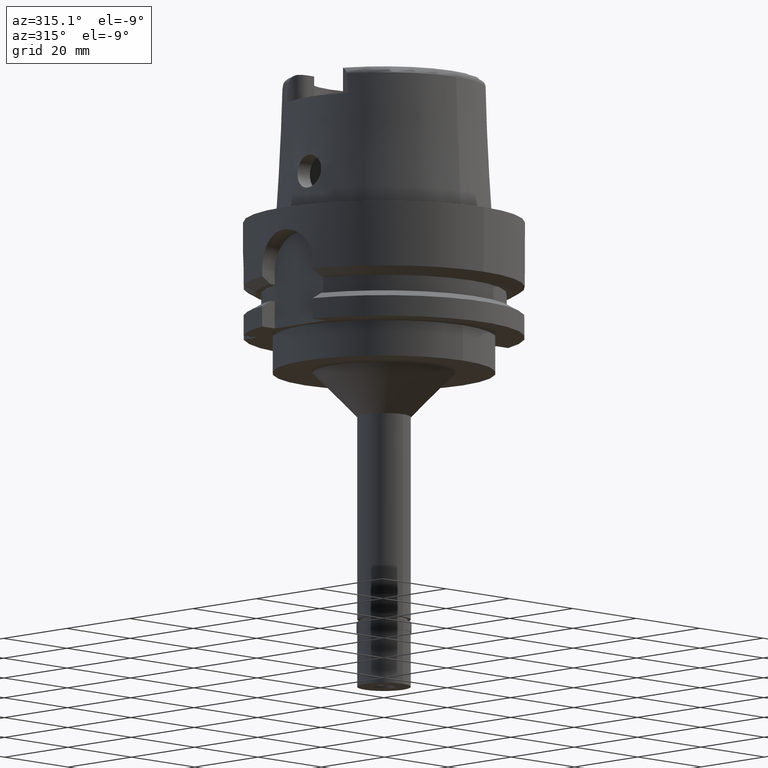
[diagram: clean part render]
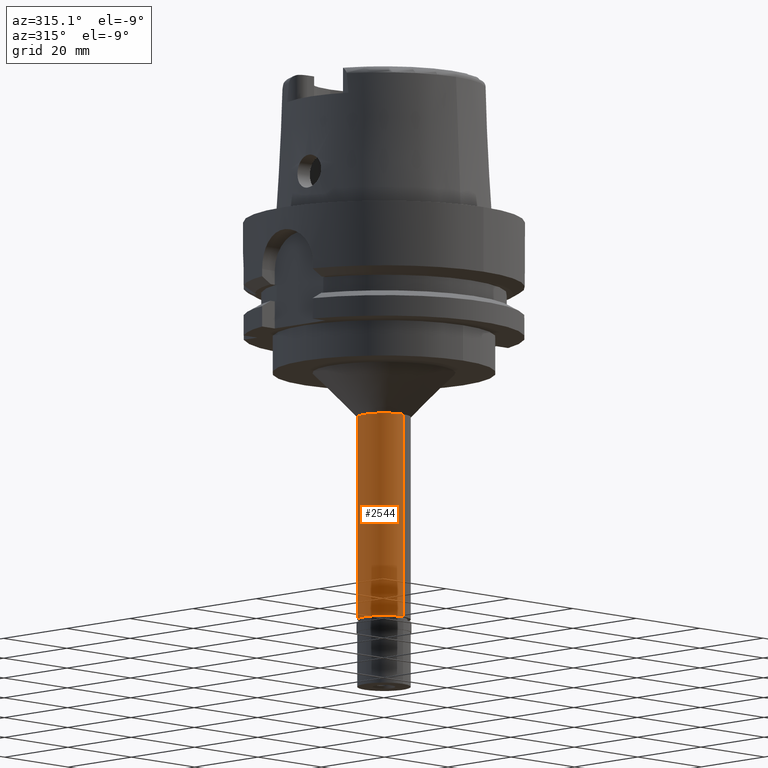
[diagram: same view with one face highlighted and labeled with its STEP entity id]
A machine part, auxiliary view. The second image highlights one B-rep face of the part: STEP entity #2544.
In plain terms, the highlighted cylindrical surface (edge-blend (fillet) strip) has radius 6 mm, axis along (0, 0, 1).
Its self-contained STEP definition (entity closure, byte-faithful):
#124 = CARTESIAN_POINT ( 'NONE',  ( 0.0000000000000000000, -6.000000000000000000, -44.00000000000000000 ) ) ;
#178 = EDGE_CURVE ( 'NONE', #2783, #1268, #1965, .T. ) ;
#194 = VERTEX_POINT ( 'NONE', #4036 ) ;
#621 = DIRECTION ( 'NONE',  ( 0.0000000000000000000, 0.0000000000000000000, -1.000000000000000000 ) ) ;
#688 = DIRECTION ( 'NONE',  ( 0.0000000000000000000, 0.0000000000000000000, 1.000000000000000000 ) ) ;
#941 = VECTOR ( 'NONE', #1886, 1000.000000000000000 ) ;
#1020 = CARTESIAN_POINT ( 'NONE',  ( 0.0000000000000000000, 0.0000000000000000000, -44.00000000000000000 ) ) ;
#1262 = ORIENTED_EDGE ( 'NONE', *, *, #3931, .T. ) ;
#1268 = VERTEX_POINT ( 'NONE', #3953 ) ;
#1412 = AXIS2_PLACEMENT_3D ( 'NONE', #4433, #688, #1515 ) ;
#1430 = VECTOR ( 'NONE', #5031, 1000.000000000000000 ) ;
#1515 = DIRECTION ( 'NONE',  ( 0.0000000000000000000, 1.000000000000000000, 0.0000000000000000000 ) ) ;
#1635 = DIRECTION ( 'NONE',  ( 0.0000000000000000000, 0.0000000000000000000, 1.000000000000000000 ) ) ;
#1886 = DIRECTION ( 'NONE',  ( 0.0000000000000000000, 0.0000000000000000000, -1.000000000000000000 ) ) ;
#1907 = EDGE_CURVE ( 'NONE', #4215, #194, #4695, .T. ) ;
#1965 = LINE ( 'NONE', #4926, #941 ) ;
#2091 = AXIS2_PLACEMENT_3D ( 'NONE', #1020, #621, #2257 ) ;
#2124 = ORIENTED_EDGE ( 'NONE', *, *, #5211, .T. ) ;
#2257 = DIRECTION ( 'NONE',  ( 0.0000000000000000000, -1.000000000000000000, 0.0000000000000000000 ) ) ;
#2405 = CARTESIAN_POINT ( 'NONE',  ( 0.0000000000000000000, 0.0000000000000000000, -107.6499999999999915 ) ) ;
#2471 = CYLINDRICAL_SURFACE ( 'NONE', #3640, 6.000000000000000000 ) ;
#2544 = ADVANCED_FACE ( 'NONE', ( #3256 ), #2471, .T. ) ;
#2783 = VERTEX_POINT ( 'NONE', #4410 ) ;
#3256 = FACE_OUTER_BOUND ( 'NONE', #4579, .T. ) ;
#3381 = ORIENTED_EDGE ( 'NONE', *, *, #178, .T. ) ;
#3640 = AXIS2_PLACEMENT_3D ( 'NONE', #2405, #1635, #4529 ) ;
#3931 = EDGE_CURVE ( 'NONE', #4215, #2783, #4382, .T. ) ;
#3953 = CARTESIAN_POINT ( 'NONE',  ( 0.0000000000000000000, 6.000000000000000000, -89.80000000000001137 ) ) ;
#4036 = CARTESIAN_POINT ( 'NONE',  ( 0.0000000000000000000, -6.000000000000000000, -89.80000000000001137 ) ) ;
#4215 = VERTEX_POINT ( 'NONE', #4587 ) ;
#4232 = CIRCLE ( 'NONE', #1412, 6.000000000000000000 ) ;
#4382 = CIRCLE ( 'NONE', #2091, 6.000000000000000000 ) ;
#4410 = CARTESIAN_POINT ( 'NONE',  ( 0.0000000000000000000, 6.000000000000000000, -44.00000000000000000 ) ) ;
#4433 = CARTESIAN_POINT ( 'NONE',  ( 0.0000000000000000000, 0.0000000000000000000, -89.80000000000001137 ) ) ;
#4529 = DIRECTION ( 'NONE',  ( 0.0000000000000000000, 1.000000000000000000, 0.0000000000000000000 ) ) ;
#4570 = ORIENTED_EDGE ( 'NONE', *, *, #1907, .F. ) ;
#4579 = EDGE_LOOP ( 'NONE', ( #2124, #4570, #1262, #3381 ) ) ;
#4587 = CARTESIAN_POINT ( 'NONE',  ( 0.0000000000000000000, -6.000000000000000000, -44.00000000000000000 ) ) ;
#4695 = LINE ( 'NONE', #124, #1430 ) ;
#4926 = CARTESIAN_POINT ( 'NONE',  ( 0.0000000000000000000, 6.000000000000000000, -44.00000000000000000 ) ) ;
#5031 = DIRECTION ( 'NONE',  ( 0.0000000000000000000, 0.0000000000000000000, -1.000000000000000000 ) ) ;
#5211 = EDGE_CURVE ( 'NONE', #1268, #194, #4232, .T. ) ;